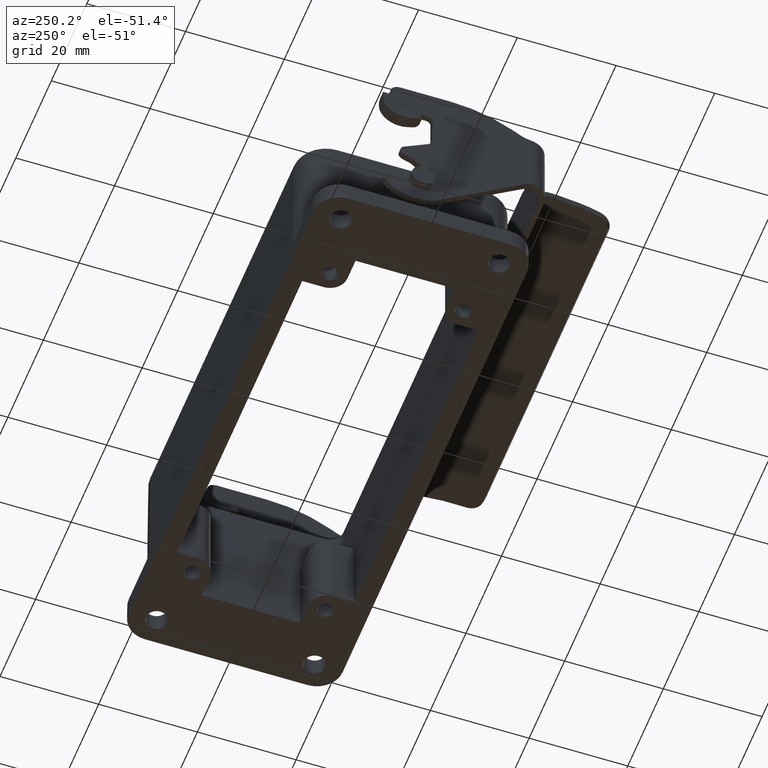
[diagram: clean part render]
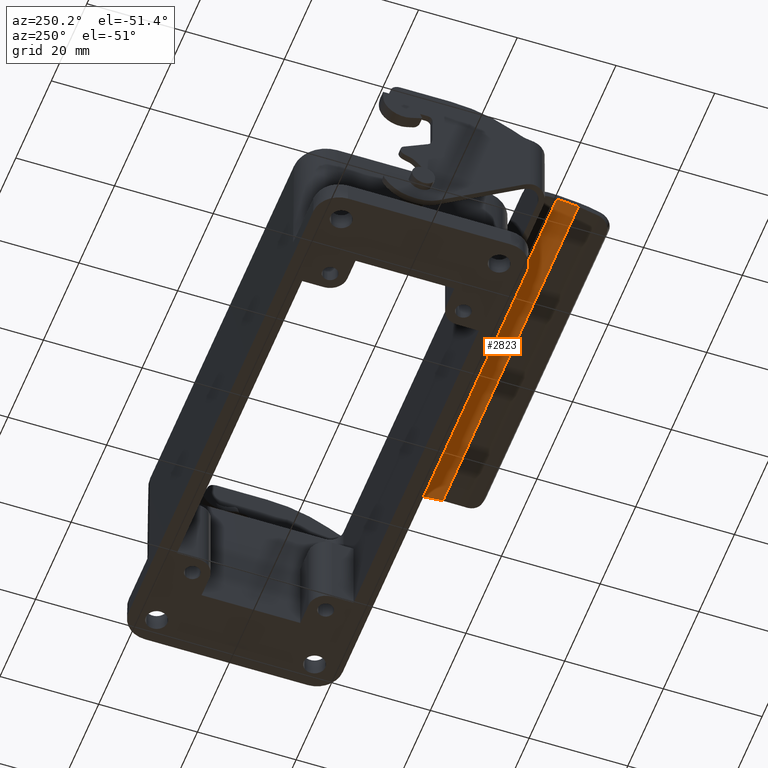
[diagram: same view with one face highlighted and labeled with its STEP entity id]
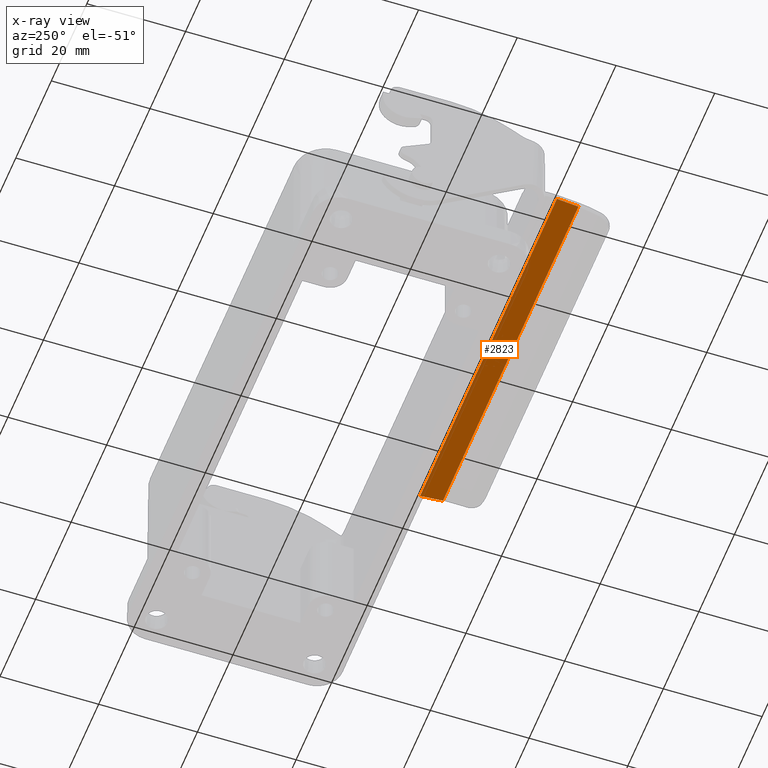
[diagram: x-ray of the same camera — body ghosted, the highlighted face saturated]
A machine part, auxiliary view. The second image highlights one B-rep face of the part: STEP entity #2823.
The next image is the same camera in x-ray: the body ghosted, the highlighted face saturated — about 11% of this face is hidden behind the body in this view.
In plain terms, the highlighted planar face has unit normal (0, 0, -1).
Its self-contained STEP definition (entity closure, byte-faithful):
#365 = VECTOR ( 'NONE', #4860, 39.37007874015748143 ) ;
#372 = VERTEX_POINT ( 'NONE', #4785 ) ;
#387 = EDGE_CURVE ( 'NONE', #4713, #4095, #5933, .T. ) ;
#391 = VECTOR ( 'NONE', #1856, 39.37007874015748143 ) ;
#750 = EDGE_LOOP ( 'NONE', ( #2454, #4191, #2548, #2106 ) ) ;
#984 = DIRECTION ( 'NONE',  ( 0.000000000000000000, 3.956422086318609493E-13, -1.000000000000000000 ) ) ;
#1061 = DIRECTION ( 'NONE',  ( 0.000000000000000000, 1.000000000000000000, 3.956422086318609493E-13 ) ) ;
#1273 = LINE ( 'NONE', #4976, #3528 ) ;
#1856 = DIRECTION ( 'NONE',  ( -0.08715574274765815199, -0.9961946980917454342, 0.000000000000000000 ) ) ;
#2106 = ORIENTED_EDGE ( 'NONE', *, *, #2123, .T. ) ;
#2123 = EDGE_CURVE ( 'NONE', #4095, #372, #2668, .T. ) ;
#2447 = CARTESIAN_POINT ( 'NONE',  ( -2.005905511830488042, -1.281244995910019391, 0.3916337806019692946 ) ) ;
#2454 = ORIENTED_EDGE ( 'NONE', *, *, #3834, .T. ) ;
#2519 = LINE ( 'NONE', #2447, #4798 ) ;
#2548 = ORIENTED_EDGE ( 'NONE', *, *, #387, .T. ) ;
#2668 = LINE ( 'NONE', #4826, #365 ) ;
#2823 = ADVANCED_FACE ( 'NONE', ( #6313 ), #5773, .T. ) ;
#3526 = CARTESIAN_POINT ( 'NONE',  ( -2.045921206592484776, -1.281244995910019613, 0.3916337806019677403 ) ) ;
#3528 = VECTOR ( 'NONE', #5085, 39.37007874015748143 ) ;
#3834 = EDGE_CURVE ( 'NONE', #372, #5633, #1273, .T. ) ;
#4095 = VERTEX_POINT ( 'NONE', #7014 ) ;
#4191 = ORIENTED_EDGE ( 'NONE', *, *, #5592, .T. ) ;
#4413 = AXIS2_PLACEMENT_3D ( 'NONE', #5909, #984, #1061 ) ;
#4713 = VERTEX_POINT ( 'NONE', #5679 ) ;
#4714 = DIRECTION ( 'NONE',  ( 1.000000000000000000, 0.000000000000000000, 0.000000000000000000 ) ) ;
#4785 = CARTESIAN_POINT ( 'NONE',  ( -2.030456358423208929, -1.458009019339114198, 0.3916337806019555279 ) ) ;
#4798 = VECTOR ( 'NONE', #4714, 39.37007874015748143 ) ;
#4826 = CARTESIAN_POINT ( 'NONE',  ( -2.005905511830488042, -1.458009019339114198, 0.3916337806019448697 ) ) ;
#4860 = DIRECTION ( 'NONE',  ( -1.000000000000000000, -0.000000000000000000, -0.000000000000000000 ) ) ;
#4976 = CARTESIAN_POINT ( 'NONE',  ( -2.005905511830488042, -1.738626479970984295, 0.3916337806019661860 ) ) ;
#5085 = DIRECTION ( 'NONE',  ( -0.08715574274765815199, 0.9961946980917454342, 0.000000000000000000 ) ) ;
#5592 = EDGE_CURVE ( 'NONE', #5633, #4713, #2519, .T. ) ;
#5633 = VERTEX_POINT ( 'NONE', #3526 ) ;
#5679 = CARTESIAN_POINT ( 'NONE',  ( 0.9868660884433215763, -1.281244995910019391, 0.3916337806019677403 ) ) ;
#5773 = PLANE ( 'NONE',  #4413 ) ;
#5898 = CARTESIAN_POINT ( 'NONE',  ( 0.9468503936813229549, -1.738626479970984295, 0.3916337806019661860 ) ) ;
#5909 = CARTESIAN_POINT ( 'NONE',  ( -2.005905511830488042, -1.458009019343307067, 0.3916337806019661860 ) ) ;
#5933 = LINE ( 'NONE', #5898, #391 ) ;
#6313 = FACE_OUTER_BOUND ( 'NONE', #750, .T. ) ;
#7014 = CARTESIAN_POINT ( 'NONE',  ( 0.9714012402740437313, -1.458009019339114198, 0.3916337806019555279 ) ) ;